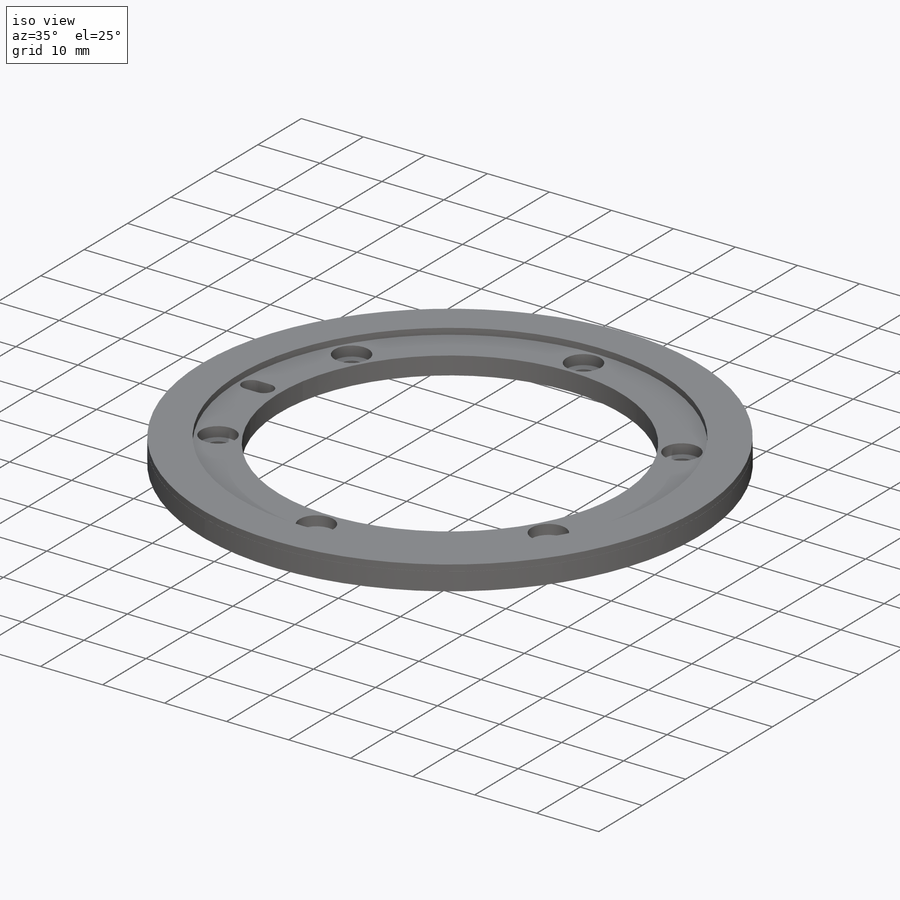
[diagram: iso view]
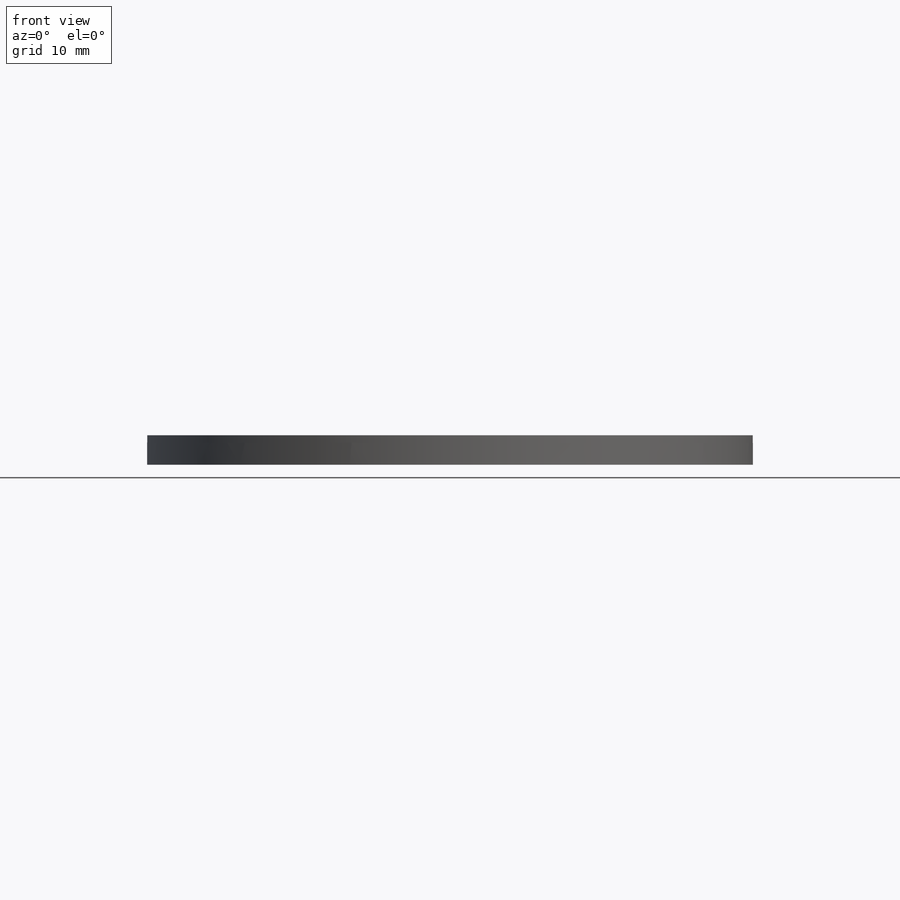
[diagram: front view]
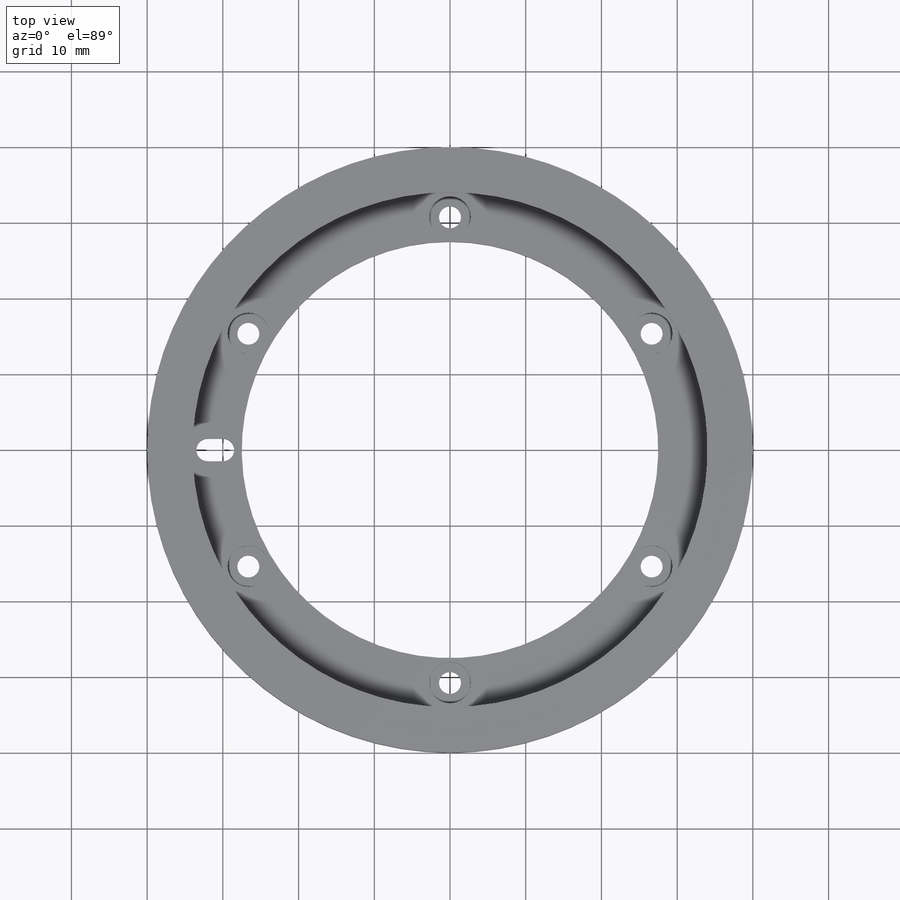
[diagram: top view]
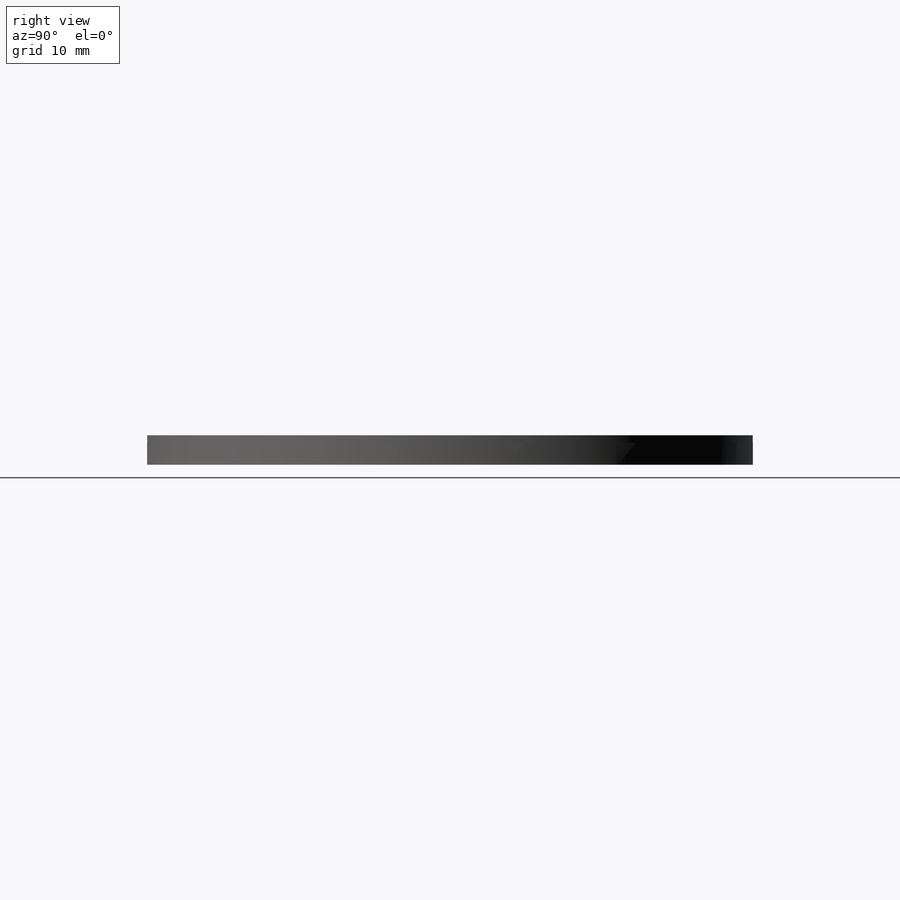
[diagram: right view]
SOLIDWORKS PART (.sldprt)
format: sldprt  version: not decoded by parser v0  size: 256,512 bytes
history: native  units: mm
features: sketch x5, material x1, revolve x1, plane x1, hole x1, pattern_circular x1, cut_extrude x1, extrude x1 (+16 scaffold rows collapsed)
feature tree (28):
  scaffold x16  (default folders/planes/origin — collapsed)
  material  "Chrome Stainless Steel"
  sketch  "Sketch1"  dims[D1=55.0mm D2=80.0mm D3=2.9mm]
  revolve  "Revolve1"  Angle=360deg
  plane  "Plane1"  Offset=0.5mm
  sketch  "Sketch5"  dims[D1=68.0mm D2=79.96mm]
  hole  "CBORE for M2.5 Hex Socket Head Cap Screw2"  Diameter=2.9mm Depth=3.4mm
  sketch  "Sketch9"  dims[D1=61.5mm]
  sketch  "Sketch8"  dims[hole-wizard template sketch: 42 standard entries collapsed; hole parameters kept: c12.Thru Hole Depth=3.4mm c12.C'Bore Dia.=5.5mm c12.C'Bore Depth=2.1mm]
  pattern_circular  "CirPattern1"  Count=6 Angle=60deg
  sketch  "Sketch10"  dims[D1=32.0mm D2=3.0mm D3=2.0mm]
  cut_extrude  "Cut-Extrude4"  Depth=10mm
  extrude  "Boss-Extrude1"  Depth=1mm
decode coverage: 10 of 10 modeling features carry decoded parameters
note: ~ marks probable driven/reference dimensions
note: suppression state not decoded; provenance and decode notes live in map.json
